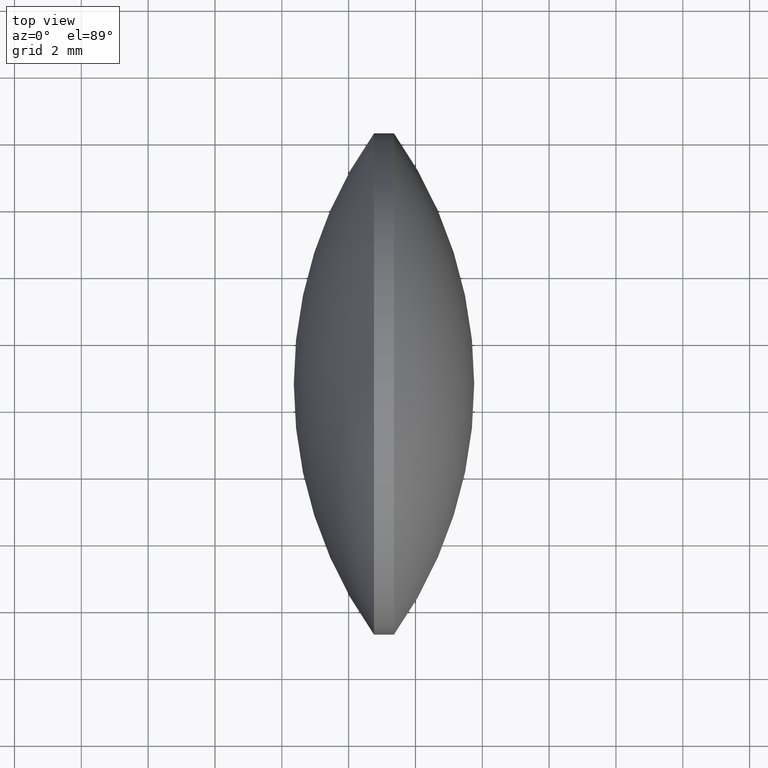
[diagram: clean part render]
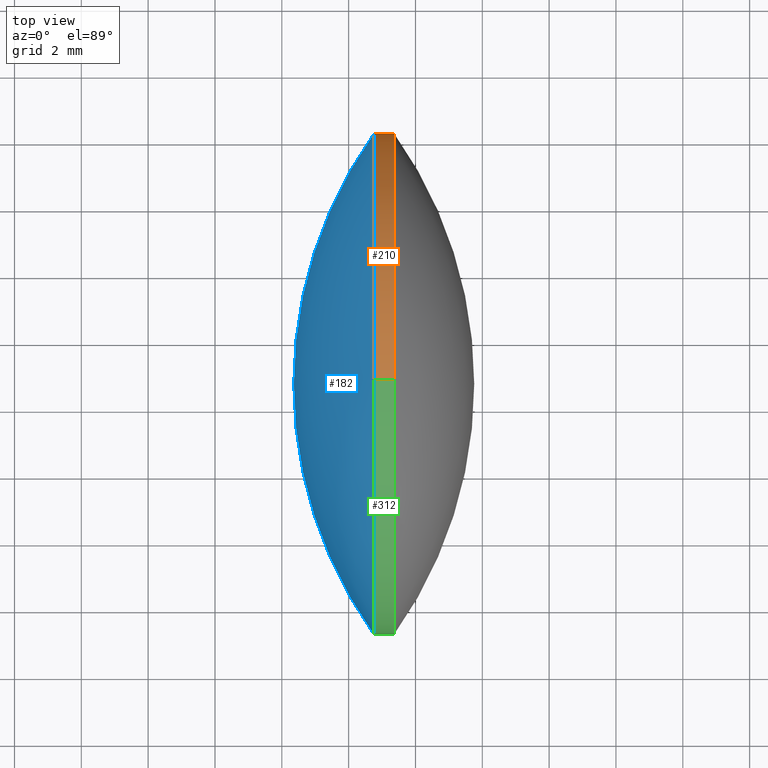
[diagram: same view with three faces highlighted in distinct colors, each labeled with its STEP entity id]
A machine part, top view with three faces highlighted in distinct colors.
Their STEP definitions:

[orange] entity #210 — the highlighted cylindrical surface (partial cylindrical patch) has radius 7.5 mm, axis along (-1, -0, -0).
#2 = EDGE_CURVE ( 'NONE', #48, #190, #340, .T. ) ;
#14 = CARTESIAN_POINT ( 'NONE',  ( 46.83389843553333500, 28.71030296644745400, -7.499999999999927200 ) ) ;
#15 = VERTEX_POINT ( 'NONE', #33 ) ;
#33 = CARTESIAN_POINT ( 'NONE',  ( 50.75798844960341000, 28.71030296644745400, 7.499999999999927200 ) ) ;
#40 = ORIENTED_EDGE ( 'NONE', *, *, #2, .F. ) ;
#44 = CIRCLE ( 'NONE', #56, 7.499999999999927200 ) ;
#48 = VERTEX_POINT ( 'NONE', #91 ) ;
#49 = EDGE_CURVE ( 'NONE', #183, #190, #283, .T. ) ;
#56 = AXIS2_PLACEMENT_3D ( 'NONE', #232, #68, #131 ) ;
#65 = DIRECTION ( 'NONE',  ( 0.0000000000000000000, 0.0000000000000000000, 1.000000000000000000 ) ) ;
#68 = DIRECTION ( 'NONE',  ( -1.000000000000000000, -0.0000000000000000000, -0.0000000000000000000 ) ) ;
#70 = DIRECTION ( 'NONE',  ( 0.0000000000000000000, 0.0000000000000000000, 1.000000000000000000 ) ) ;
#79 = ORIENTED_EDGE ( 'NONE', *, *, #49, .T. ) ;
#90 = CARTESIAN_POINT ( 'NONE',  ( 50.75798844960341000, 28.71030296644745400, 0.0000000000000000000 ) ) ;
#91 = CARTESIAN_POINT ( 'NONE',  ( 50.75798844960341000, 36.21030296644737900, 0.0000000000000000000 ) ) ;
#104 = CARTESIAN_POINT ( 'NONE',  ( 46.83389843553333500, 28.71030296644745400, 7.499999999999927200 ) ) ;
#105 = CARTESIAN_POINT ( 'NONE',  ( 51.35798844960340400, 28.71030296644745400, 7.499999999999927200 ) ) ;
#107 = EDGE_CURVE ( 'NONE', #300, #183, #197, .T. ) ;
#112 = CYLINDRICAL_SURFACE ( 'NONE', #308, 7.499999999999927200 ) ;
#113 = AXIS2_PLACEMENT_3D ( 'NONE', #234, #205, #70 ) ;
#123 = VECTOR ( 'NONE', #181, 1000.000000000000000 ) ;
#126 = DIRECTION ( 'NONE',  ( -1.000000000000000000, -0.0000000000000000000, -0.0000000000000000000 ) ) ;
#127 = AXIS2_PLACEMENT_3D ( 'NONE', #90, #173, #248 ) ;
#130 = EDGE_LOOP ( 'NONE', ( #321, #79, #40, #344, #233, #245 ) ) ;
#131 = DIRECTION ( 'NONE',  ( 0.0000000000000000000, 0.0000000000000000000, 1.000000000000000000 ) ) ;
#135 = AXIS2_PLACEMENT_3D ( 'NONE', #224, #126, #278 ) ;
#173 = DIRECTION ( 'NONE',  ( -1.000000000000000000, -0.0000000000000000000, -0.0000000000000000000 ) ) ;
#175 = CARTESIAN_POINT ( 'NONE',  ( 51.35798844960340400, 28.71030296644745400, -7.499999999999927200 ) ) ;
#181 = DIRECTION ( 'NONE',  ( -1.000000000000000000, -0.0000000000000000000, -0.0000000000000000000 ) ) ;
#183 = VERTEX_POINT ( 'NONE', #175 ) ;
#189 = LINE ( 'NONE', #104, #123 ) ;
#190 = VERTEX_POINT ( 'NONE', #227 ) ;
#197 = CIRCLE ( 'NONE', #135, 7.499999999999927200 ) ;
#205 = DIRECTION ( 'NONE',  ( -1.000000000000000000, -0.0000000000000000000, -0.0000000000000000000 ) ) ;
#207 = CIRCLE ( 'NONE', #113, 7.499999999999927200 ) ;
#210 = ADVANCED_FACE ( 'NONE', ( #329 ), #112, .T. ) ;
#211 = VECTOR ( 'NONE', #280, 1000.000000000000000 ) ;
#224 = CARTESIAN_POINT ( 'NONE',  ( 51.35798844960340400, 28.71030296644745400, 0.0000000000000000000 ) ) ;
#227 = CARTESIAN_POINT ( 'NONE',  ( 50.75798844960341000, 28.71030296644745400, -7.499999999999927200 ) ) ;
#232 = CARTESIAN_POINT ( 'NONE',  ( 51.35798844960340400, 28.71030296644745400, 0.0000000000000000000 ) ) ;
#233 = ORIENTED_EDGE ( 'NONE', *, *, #341, .F. ) ;
#234 = CARTESIAN_POINT ( 'NONE',  ( 50.75798844960341000, 28.71030296644745400, 0.0000000000000000000 ) ) ;
#240 = EDGE_CURVE ( 'NONE', #276, #300, #44, .T. ) ;
#245 = ORIENTED_EDGE ( 'NONE', *, *, #240, .T. ) ;
#248 = DIRECTION ( 'NONE',  ( 0.0000000000000000000, 0.0000000000000000000, 1.000000000000000000 ) ) ;
#259 = DIRECTION ( 'NONE',  ( -1.000000000000000000, -0.0000000000000000000, -0.0000000000000000000 ) ) ;
#276 = VERTEX_POINT ( 'NONE', #105 ) ;
#278 = DIRECTION ( 'NONE',  ( 0.0000000000000000000, 0.0000000000000000000, 1.000000000000000000 ) ) ;
#280 = DIRECTION ( 'NONE',  ( -1.000000000000000000, -0.0000000000000000000, -0.0000000000000000000 ) ) ;
#283 = LINE ( 'NONE', #14, #211 ) ;
#290 = EDGE_CURVE ( 'NONE', #15, #48, #207, .T. ) ;
#300 = VERTEX_POINT ( 'NONE', #338 ) ;
#308 = AXIS2_PLACEMENT_3D ( 'NONE', #335, #259, #65 ) ;
#321 = ORIENTED_EDGE ( 'NONE', *, *, #107, .T. ) ;
#329 = FACE_OUTER_BOUND ( 'NONE', #130, .T. ) ;
#335 = CARTESIAN_POINT ( 'NONE',  ( 46.83389843553333500, 28.71030296644745400, 0.0000000000000000000 ) ) ;
#338 = CARTESIAN_POINT ( 'NONE',  ( 51.35798844960340400, 36.21030296644737900, 0.0000000000000000000 ) ) ;
#340 = CIRCLE ( 'NONE', #127, 7.499999999999927200 ) ;
#341 = EDGE_CURVE ( 'NONE', #276, #15, #189, .T. ) ;
#344 = ORIENTED_EDGE ( 'NONE', *, *, #290, .F. ) ;

[blue] entity #182 — the highlighted spherical surface has radius 12.9187 mm.
#11 = CARTESIAN_POINT ( 'NONE',  ( 61.27673844960327900, 28.71030296644745400, 0.0000000000000000000 ) ) ;
#12 = DIRECTION ( 'NONE',  ( -0.0000000000000000000, 0.0000000000000000000, 1.000000000000000000 ) ) ;
#13 = CARTESIAN_POINT ( 'NONE',  ( 61.27673844960327900, 28.71030296644745400, 0.0000000000000000000 ) ) ;
#15 = VERTEX_POINT ( 'NONE', #33 ) ;
#33 = CARTESIAN_POINT ( 'NONE',  ( 50.75798844960341000, 28.71030296644745400, 7.499999999999927200 ) ) ;
#34 = DIRECTION ( 'NONE',  ( -0.0000000000000000000, 0.0000000000000000000, -1.000000000000000000 ) ) ;
#37 = AXIS2_PLACEMENT_3D ( 'NONE', #206, #12, #299 ) ;
#48 = VERTEX_POINT ( 'NONE', #91 ) ;
#52 = ORIENTED_EDGE ( 'NONE', *, *, #274, .F. ) ;
#63 = CIRCLE ( 'NONE', #94, 12.91874999999985700 ) ;
#70 = DIRECTION ( 'NONE',  ( 0.0000000000000000000, 0.0000000000000000000, 1.000000000000000000 ) ) ;
#74 = AXIS2_PLACEMENT_3D ( 'NONE', #13, #34, #249 ) ;
#85 = CARTESIAN_POINT ( 'NONE',  ( 48.35798844960342500, 28.71030296644745400, 0.0000000000000000000 ) ) ;
#91 = CARTESIAN_POINT ( 'NONE',  ( 50.75798844960341000, 36.21030296644737900, 0.0000000000000000000 ) ) ;
#94 = AXIS2_PLACEMENT_3D ( 'NONE', #11, #195, #225 ) ;
#106 = DIRECTION ( 'NONE',  ( -1.000000000000000000, -0.0000000000000000000, -0.0000000000000000000 ) ) ;
#113 = AXIS2_PLACEMENT_3D ( 'NONE', #234, #205, #70 ) ;
#115 = EDGE_LOOP ( 'NONE', ( #52, #247, #138, #209 ) ) ;
#138 = ORIENTED_EDGE ( 'NONE', *, *, #290, .T. ) ;
#145 = FACE_OUTER_BOUND ( 'NONE', #115, .T. ) ;
#179 = VERTEX_POINT ( 'NONE', #85 ) ;
#182 = ADVANCED_FACE ( 'NONE', ( #145 ), #319, .T. ) ;
#195 = DIRECTION ( 'NONE',  ( 0.0000000000000000000, 1.224646799147353200E-016, -1.000000000000000000 ) ) ;
#205 = DIRECTION ( 'NONE',  ( -1.000000000000000000, -0.0000000000000000000, -0.0000000000000000000 ) ) ;
#206 = CARTESIAN_POINT ( 'NONE',  ( 61.27673844960327900, 28.71030296644745400, 0.0000000000000000000 ) ) ;
#207 = CIRCLE ( 'NONE', #113, 7.499999999999927200 ) ;
#208 = CARTESIAN_POINT ( 'NONE',  ( 50.75798844960341000, 28.71030296644745400, 0.0000000000000000000 ) ) ;
#209 = ORIENTED_EDGE ( 'NONE', *, *, #223, .T. ) ;
#223 = EDGE_CURVE ( 'NONE', #48, #179, #337, .T. ) ;
#225 = DIRECTION ( 'NONE',  ( 0.0000000000000000000, 1.000000000000000000, 1.224646799147353200E-016 ) ) ;
#234 = CARTESIAN_POINT ( 'NONE',  ( 50.75798844960341000, 28.71030296644745400, 0.0000000000000000000 ) ) ;
#235 = DIRECTION ( 'NONE',  ( 0.0000000000000000000, 0.0000000000000000000, 1.000000000000000000 ) ) ;
#247 = ORIENTED_EDGE ( 'NONE', *, *, #322, .T. ) ;
#249 = DIRECTION ( 'NONE',  ( 0.0000000000000000000, 1.000000000000000000, 0.0000000000000000000 ) ) ;
#272 = CIRCLE ( 'NONE', #275, 7.499999999999927200 ) ;
#274 = EDGE_CURVE ( 'NONE', #288, #179, #63, .T. ) ;
#275 = AXIS2_PLACEMENT_3D ( 'NONE', #208, #106, #235 ) ;
#287 = CARTESIAN_POINT ( 'NONE',  ( 50.75798844960341000, 21.21030296644752500, -9.184850993605061200E-016 ) ) ;
#288 = VERTEX_POINT ( 'NONE', #287 ) ;
#290 = EDGE_CURVE ( 'NONE', #15, #48, #207, .T. ) ;
#299 = DIRECTION ( 'NONE',  ( 1.000000000000000000, 0.0000000000000000000, 0.0000000000000000000 ) ) ;
#319 = SPHERICAL_SURFACE ( 'NONE', #74, 12.91874999999985700 ) ;
#322 = EDGE_CURVE ( 'NONE', #288, #15, #272, .T. ) ;
#337 = CIRCLE ( 'NONE', #37, 12.91874999999985400 ) ;

[green] entity #312 — the highlighted cylindrical surface (partial cylindrical patch) has radius 7.5 mm, axis along (-1, -0, -0).
#4 = AXIS2_PLACEMENT_3D ( 'NONE', #99, #200, #47 ) ;
#10 = DIRECTION ( 'NONE',  ( 0.0000000000000000000, 0.0000000000000000000, 1.000000000000000000 ) ) ;
#14 = CARTESIAN_POINT ( 'NONE',  ( 46.83389843553333500, 28.71030296644745400, -7.499999999999927200 ) ) ;
#15 = VERTEX_POINT ( 'NONE', #33 ) ;
#31 = CARTESIAN_POINT ( 'NONE',  ( 51.35798844960340400, 28.71030296644745400, 0.0000000000000000000 ) ) ;
#33 = CARTESIAN_POINT ( 'NONE',  ( 50.75798844960341000, 28.71030296644745400, 7.499999999999927200 ) ) ;
#36 = EDGE_CURVE ( 'NONE', #103, #276, #331, .T. ) ;
#43 = CARTESIAN_POINT ( 'NONE',  ( 46.83389843553333500, 28.71030296644745400, 0.0000000000000000000 ) ) ;
#45 = DIRECTION ( 'NONE',  ( -1.000000000000000000, -0.0000000000000000000, -0.0000000000000000000 ) ) ;
#47 = DIRECTION ( 'NONE',  ( 0.0000000000000000000, 0.0000000000000000000, 1.000000000000000000 ) ) ;
#49 = EDGE_CURVE ( 'NONE', #183, #190, #283, .T. ) ;
#55 = AXIS2_PLACEMENT_3D ( 'NONE', #301, #86, #10 ) ;
#86 = DIRECTION ( 'NONE',  ( -1.000000000000000000, -0.0000000000000000000, -0.0000000000000000000 ) ) ;
#89 = ORIENTED_EDGE ( 'NONE', *, *, #203, .F. ) ;
#99 = CARTESIAN_POINT ( 'NONE',  ( 50.75798844960341000, 28.71030296644745400, 0.0000000000000000000 ) ) ;
#103 = VERTEX_POINT ( 'NONE', #124 ) ;
#104 = CARTESIAN_POINT ( 'NONE',  ( 46.83389843553333500, 28.71030296644745400, 7.499999999999927200 ) ) ;
#105 = CARTESIAN_POINT ( 'NONE',  ( 51.35798844960340400, 28.71030296644745400, 7.499999999999927200 ) ) ;
#106 = DIRECTION ( 'NONE',  ( -1.000000000000000000, -0.0000000000000000000, -0.0000000000000000000 ) ) ;
#114 = FACE_OUTER_BOUND ( 'NONE', #151, .T. ) ;
#123 = VECTOR ( 'NONE', #181, 1000.000000000000000 ) ;
#124 = CARTESIAN_POINT ( 'NONE',  ( 51.35798844960340400, 21.21030296644752200, -9.184850993605063100E-016 ) ) ;
#134 = CIRCLE ( 'NONE', #4, 7.499999999999927200 ) ;
#142 = ORIENTED_EDGE ( 'NONE', *, *, #322, .F. ) ;
#151 = EDGE_LOOP ( 'NONE', ( #265, #317, #199, #198, #142, #89 ) ) ;
#175 = CARTESIAN_POINT ( 'NONE',  ( 51.35798844960340400, 28.71030296644745400, -7.499999999999927200 ) ) ;
#181 = DIRECTION ( 'NONE',  ( -1.000000000000000000, -0.0000000000000000000, -0.0000000000000000000 ) ) ;
#183 = VERTEX_POINT ( 'NONE', #175 ) ;
#186 = EDGE_CURVE ( 'NONE', #183, #103, #260, .T. ) ;
#189 = LINE ( 'NONE', #104, #123 ) ;
#190 = VERTEX_POINT ( 'NONE', #227 ) ;
#198 = ORIENTED_EDGE ( 'NONE', *, *, #341, .T. ) ;
#199 = ORIENTED_EDGE ( 'NONE', *, *, #36, .T. ) ;
#200 = DIRECTION ( 'NONE',  ( -1.000000000000000000, -0.0000000000000000000, -0.0000000000000000000 ) ) ;
#203 = EDGE_CURVE ( 'NONE', #190, #288, #134, .T. ) ;
#208 = CARTESIAN_POINT ( 'NONE',  ( 50.75798844960341000, 28.71030296644745400, 0.0000000000000000000 ) ) ;
#211 = VECTOR ( 'NONE', #280, 1000.000000000000000 ) ;
#227 = CARTESIAN_POINT ( 'NONE',  ( 50.75798844960341000, 28.71030296644745400, -7.499999999999927200 ) ) ;
#235 = DIRECTION ( 'NONE',  ( 0.0000000000000000000, 0.0000000000000000000, 1.000000000000000000 ) ) ;
#251 = DIRECTION ( 'NONE',  ( 0.0000000000000000000, 0.0000000000000000000, 1.000000000000000000 ) ) ;
#258 = DIRECTION ( 'NONE',  ( 0.0000000000000000000, 0.0000000000000000000, 1.000000000000000000 ) ) ;
#260 = CIRCLE ( 'NONE', #282, 7.499999999999927200 ) ;
#265 = ORIENTED_EDGE ( 'NONE', *, *, #49, .F. ) ;
#267 = CYLINDRICAL_SURFACE ( 'NONE', #323, 7.499999999999927200 ) ;
#272 = CIRCLE ( 'NONE', #275, 7.499999999999927200 ) ;
#275 = AXIS2_PLACEMENT_3D ( 'NONE', #208, #106, #235 ) ;
#276 = VERTEX_POINT ( 'NONE', #105 ) ;
#280 = DIRECTION ( 'NONE',  ( -1.000000000000000000, -0.0000000000000000000, -0.0000000000000000000 ) ) ;
#282 = AXIS2_PLACEMENT_3D ( 'NONE', #31, #328, #251 ) ;
#283 = LINE ( 'NONE', #14, #211 ) ;
#287 = CARTESIAN_POINT ( 'NONE',  ( 50.75798844960341000, 21.21030296644752500, -9.184850993605061200E-016 ) ) ;
#288 = VERTEX_POINT ( 'NONE', #287 ) ;
#301 = CARTESIAN_POINT ( 'NONE',  ( 51.35798844960340400, 28.71030296644745400, 0.0000000000000000000 ) ) ;
#312 = ADVANCED_FACE ( 'NONE', ( #114 ), #267, .T. ) ;
#317 = ORIENTED_EDGE ( 'NONE', *, *, #186, .T. ) ;
#322 = EDGE_CURVE ( 'NONE', #288, #15, #272, .T. ) ;
#323 = AXIS2_PLACEMENT_3D ( 'NONE', #43, #45, #258 ) ;
#328 = DIRECTION ( 'NONE',  ( -1.000000000000000000, -0.0000000000000000000, -0.0000000000000000000 ) ) ;
#331 = CIRCLE ( 'NONE', #55, 7.499999999999927200 ) ;
#341 = EDGE_CURVE ( 'NONE', #276, #15, #189, .T. ) ;